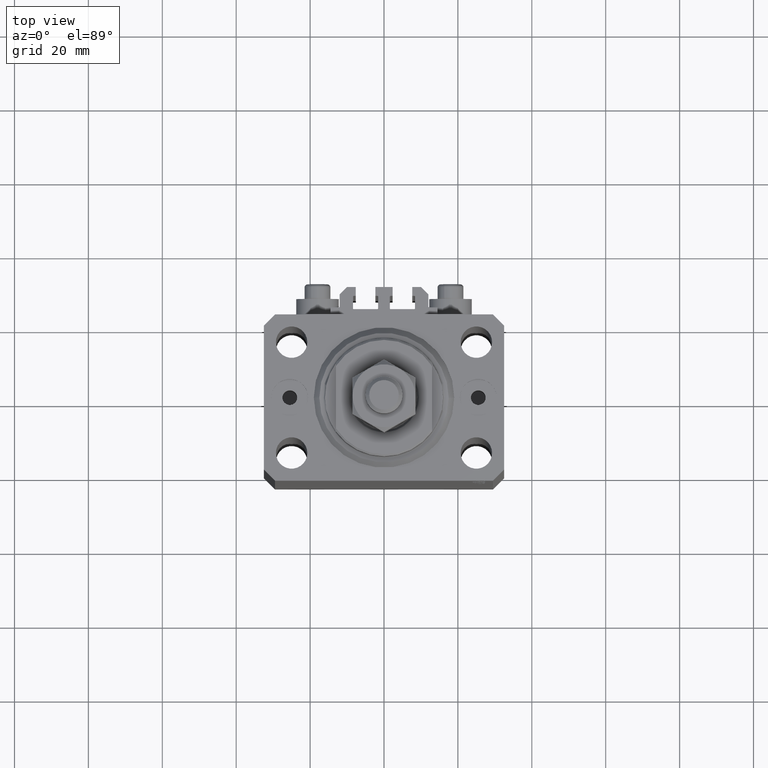
[diagram: clean part render]
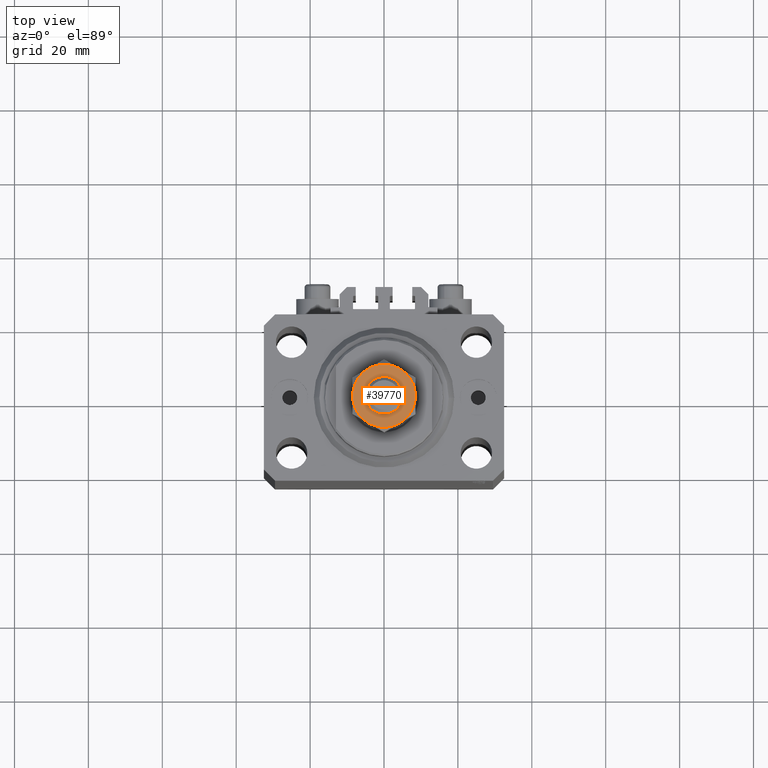
[diagram: same view with one face highlighted and labeled with its STEP entity id]
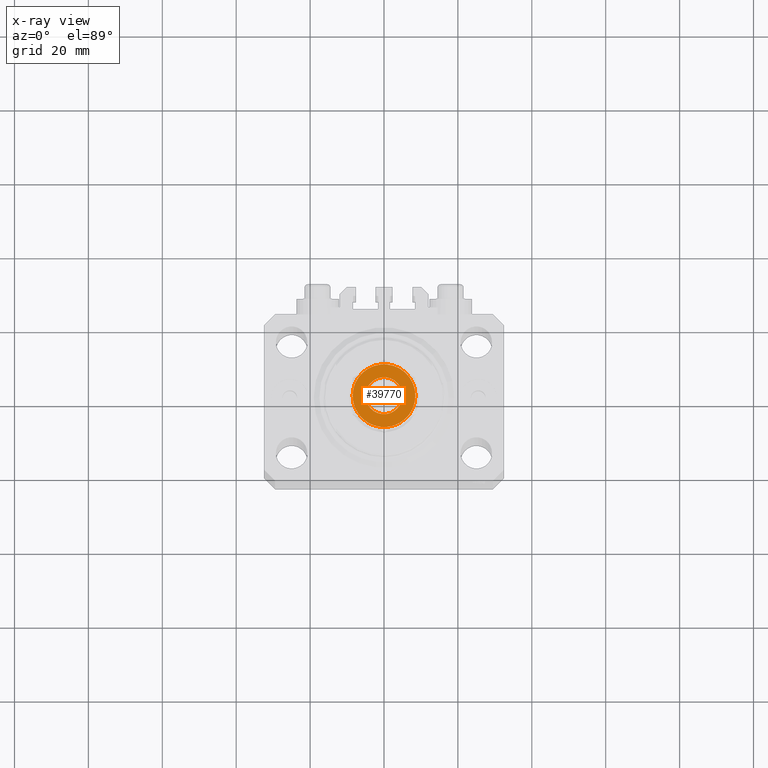
[diagram: x-ray of the same camera — body ghosted, the highlighted face saturated]
A machine part, top view. The second image highlights one B-rep face of the part: STEP entity #39770.
The next image is the same camera in x-ray: the body ghosted, the highlighted face saturated — about 0% of this face is hidden behind the body in this view.
In plain terms, the highlighted planar face has unit normal (0, 0, 1).
Its self-contained STEP definition (entity closure, byte-faithful):
#69 = ORIENTED_EDGE ( 'NONE', *, *, #37131, .T. ) ;
#182 = EDGE_CURVE ( 'NONE', #2194, #36557, #35488, .T. ) ;
#1697 = VERTEX_POINT ( 'NONE', #16564 ) ;
#2194 = VERTEX_POINT ( 'NONE', #25795 ) ;
#3717 = CIRCLE ( 'NONE', #35980, 8.499999999999996447 ) ;
#3943 = DIRECTION ( 'NONE',  ( 1.000000000000000000, 0.000000000000000000, 0.000000000000000000 ) ) ;
#3946 = CARTESIAN_POINT ( 'NONE',  ( 0.000000000000000000, 0.000000000000000000, 14.00000000000000000 ) ) ;
#4842 = AXIS2_PLACEMENT_3D ( 'NONE', #32129, #17834, #43479 ) ;
#5028 = ORIENTED_EDGE ( 'NONE', *, *, #34451, .T. ) ;
#5379 = ORIENTED_EDGE ( 'NONE', *, *, #31565, .T. ) ;
#7177 = EDGE_CURVE ( 'NONE', #17027, #14196, #8171, .T. ) ;
#7231 = VERTEX_POINT ( 'NONE', #17967 ) ;
#7387 = DIRECTION ( 'NONE',  ( 0.000000000000000000, -0.000000000000000000, 1.000000000000000000 ) ) ;
#7896 = DIRECTION ( 'NONE',  ( -0.000000000000000000, 0.000000000000000000, -1.000000000000000000 ) ) ;
#7954 = ORIENTED_EDGE ( 'NONE', *, *, #7177, .T. ) ;
#8171 = CIRCLE ( 'NONE', #32564, 8.499999999999996447 ) ;
#8844 = CIRCLE ( 'NONE', #15153, 5.000000000000000000 ) ;
#9006 = EDGE_CURVE ( 'NONE', #14196, #22212, #10602, .T. ) ;
#9806 = PLANE ( 'NONE',  #23078 ) ;
#10602 = CIRCLE ( 'NONE', #18465, 8.499999999999996447 ) ;
#10677 = CARTESIAN_POINT ( 'NONE',  ( 8.499999999999996447, 1.502314598737159820E-15, 14.00000000000000000 ) ) ;
#10684 = ORIENTED_EDGE ( 'NONE', *, *, #39880, .T. ) ;
#11238 = ORIENTED_EDGE ( 'NONE', *, *, #9006, .T. ) ;
#11528 = CARTESIAN_POINT ( 'NONE',  ( -5.000000000000000000, 6.123233995736766282E-16, 13.99999999999999822 ) ) ;
#12862 = CIRCLE ( 'NONE', #48310, 8.499999999999996447 ) ;
#14196 = VERTEX_POINT ( 'NONE', #34737 ) ;
#14329 = CARTESIAN_POINT ( 'NONE',  ( 0.000000000000000000, 0.000000000000000000, 14.00000000000000000 ) ) ;
#15153 = AXIS2_PLACEMENT_3D ( 'NONE', #14329, #7896, #25915 ) ;
#16207 = CARTESIAN_POINT ( 'NONE',  ( -4.250000000000000000, 7.361215932167723963, 14.00000000000000000 ) ) ;
#16420 = CARTESIAN_POINT ( 'NONE',  ( 0.000000000000000000, 0.000000000000000000, 14.00000000000000000 ) ) ;
#16564 = CARTESIAN_POINT ( 'NONE',  ( 4.250000000000000000, -7.361215932167723963, 14.00000000000000000 ) ) ;
#17027 = VERTEX_POINT ( 'NONE', #10677 ) ;
#17454 = CIRCLE ( 'NONE', #4842, 8.499999999999996447 ) ;
#17834 = DIRECTION ( 'NONE',  ( 0.000000000000000000, -0.000000000000000000, 1.000000000000000000 ) ) ;
#17967 = CARTESIAN_POINT ( 'NONE',  ( -8.499999999999996447, 0.000000000000000000, 14.00000000000000000 ) ) ;
#18180 = EDGE_LOOP ( 'NONE', ( #10684, #7954, #11238, #69, #45180, #5379 ) ) ;
#18437 = DIRECTION ( 'NONE',  ( 1.000000000000000000, 0.000000000000000000, 0.000000000000000000 ) ) ;
#18465 = AXIS2_PLACEMENT_3D ( 'NONE', #29775, #44349, #28805 ) ;
#18524 = DIRECTION ( 'NONE',  ( 1.000000000000000000, 0.000000000000000000, 0.000000000000000000 ) ) ;
#19220 = DIRECTION ( 'NONE',  ( 1.000000000000000000, 0.000000000000000000, 0.000000000000000000 ) ) ;
#19322 = EDGE_CURVE ( 'NONE', #7231, #32804, #3717, .T. ) ;
#20782 = ORIENTED_EDGE ( 'NONE', *, *, #182, .T. ) ;
#21528 = AXIS2_PLACEMENT_3D ( 'NONE', #22209, #43942, #18524 ) ;
#22209 = CARTESIAN_POINT ( 'NONE',  ( 0.000000000000000000, 0.000000000000000000, 14.00000000000000000 ) ) ;
#22212 = VERTEX_POINT ( 'NONE', #16207 ) ;
#23078 = AXIS2_PLACEMENT_3D ( 'NONE', #36192, #36685, #28798 ) ;
#23111 = CIRCLE ( 'NONE', #21528, 8.499999999999996447 ) ;
#25059 = EDGE_LOOP ( 'NONE', ( #20782, #5028 ) ) ;
#25107 = DIRECTION ( 'NONE',  ( 0.000000000000000000, 0.000000000000000000, 1.000000000000000000 ) ) ;
#25795 = CARTESIAN_POINT ( 'NONE',  ( 5.000000000000000000, 0.000000000000000000, 13.99999999999999822 ) ) ;
#25915 = DIRECTION ( 'NONE',  ( 1.000000000000000000, 0.000000000000000000, 0.000000000000000000 ) ) ;
#26781 = DIRECTION ( 'NONE',  ( 0.000000000000000000, -0.000000000000000000, 1.000000000000000000 ) ) ;
#28542 = FACE_OUTER_BOUND ( 'NONE', #18180, .T. ) ;
#28798 = DIRECTION ( 'NONE',  ( 1.000000000000000000, 0.000000000000000000, -0.000000000000000000 ) ) ;
#28805 = DIRECTION ( 'NONE',  ( 1.000000000000000000, 0.000000000000000000, 0.000000000000000000 ) ) ;
#29775 = CARTESIAN_POINT ( 'NONE',  ( 0.000000000000000000, 0.000000000000000000, 14.00000000000000000 ) ) ;
#31565 = EDGE_CURVE ( 'NONE', #32804, #1697, #17454, .T. ) ;
#32129 = CARTESIAN_POINT ( 'NONE',  ( 0.000000000000000000, 0.000000000000000000, 14.00000000000000000 ) ) ;
#32564 = AXIS2_PLACEMENT_3D ( 'NONE', #40151, #25107, #47586 ) ;
#32804 = VERTEX_POINT ( 'NONE', #39230 ) ;
#34451 = EDGE_CURVE ( 'NONE', #36557, #2194, #8844, .T. ) ;
#34737 = CARTESIAN_POINT ( 'NONE',  ( 4.249999999999999112, 7.361215932167725740, 14.00000000000000000 ) ) ;
#35488 = CIRCLE ( 'NONE', #40253, 5.000000000000000000 ) ;
#35980 = AXIS2_PLACEMENT_3D ( 'NONE', #16420, #7387, #3943 ) ;
#36192 = CARTESIAN_POINT ( 'NONE',  ( 0.000000000000000000, 0.000000000000000000, 14.00000000000000000 ) ) ;
#36436 = FACE_BOUND ( 'NONE', #25059, .T. ) ;
#36557 = VERTEX_POINT ( 'NONE', #11528 ) ;
#36685 = DIRECTION ( 'NONE',  ( 0.000000000000000000, -0.000000000000000000, 1.000000000000000000 ) ) ;
#37131 = EDGE_CURVE ( 'NONE', #22212, #7231, #23111, .T. ) ;
#39230 = CARTESIAN_POINT ( 'NONE',  ( -4.250000000000000888, -7.361215932167725740, 14.00000000000000000 ) ) ;
#39770 = ADVANCED_FACE ( 'NONE', ( #36436, #28542 ), #9806, .T. ) ;
#39880 = EDGE_CURVE ( 'NONE', #1697, #17027, #12862, .T. ) ;
#40151 = CARTESIAN_POINT ( 'NONE',  ( 0.000000000000000000, 0.000000000000000000, 14.00000000000000000 ) ) ;
#40253 = AXIS2_PLACEMENT_3D ( 'NONE', #3946, #46101, #19220 ) ;
#43479 = DIRECTION ( 'NONE',  ( 1.000000000000000000, 0.000000000000000000, 0.000000000000000000 ) ) ;
#43942 = DIRECTION ( 'NONE',  ( 0.000000000000000000, -0.000000000000000000, 1.000000000000000000 ) ) ;
#44349 = DIRECTION ( 'NONE',  ( 0.000000000000000000, -0.000000000000000000, 1.000000000000000000 ) ) ;
#45180 = ORIENTED_EDGE ( 'NONE', *, *, #19322, .T. ) ;
#46101 = DIRECTION ( 'NONE',  ( -0.000000000000000000, 0.000000000000000000, -1.000000000000000000 ) ) ;
#47586 = DIRECTION ( 'NONE',  ( 1.000000000000000000, 0.000000000000000000, 0.000000000000000000 ) ) ;
#48310 = AXIS2_PLACEMENT_3D ( 'NONE', #48778, #26781, #18437 ) ;
#48778 = CARTESIAN_POINT ( 'NONE',  ( 0.000000000000000000, 0.000000000000000000, 14.00000000000000000 ) ) ;